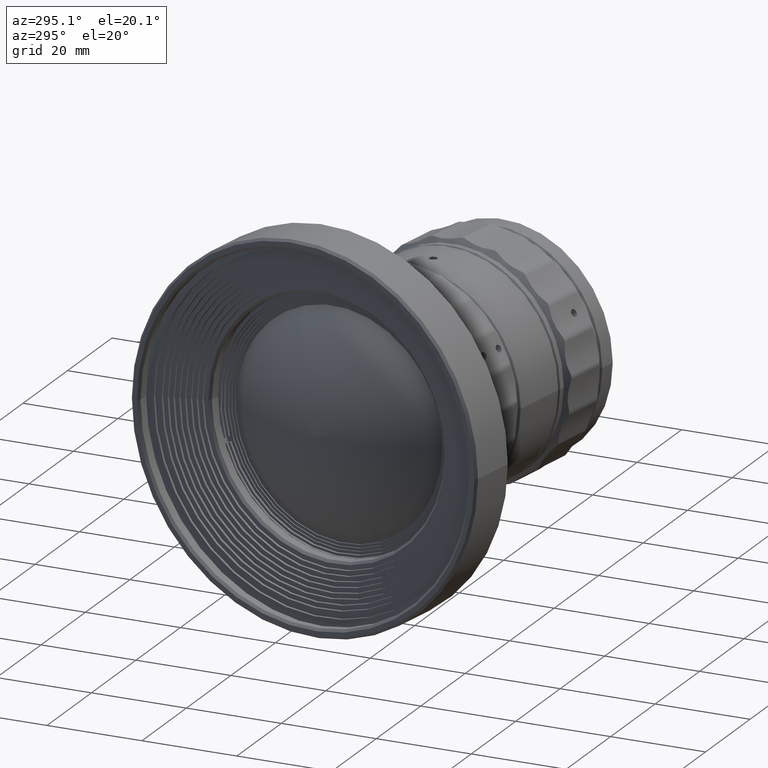
[diagram: clean part render]
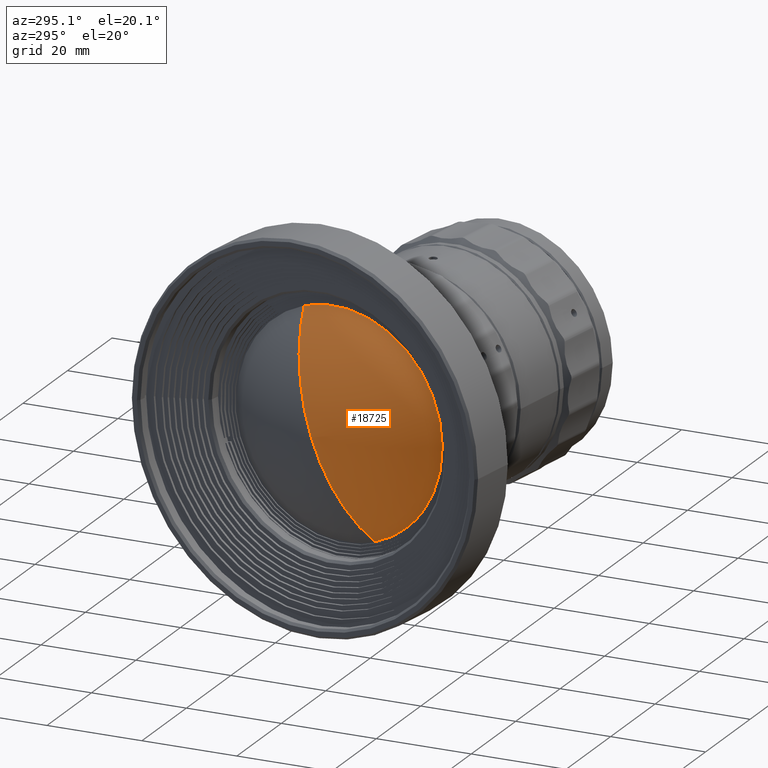
[diagram: same view with one face highlighted and labeled with its STEP entity id]
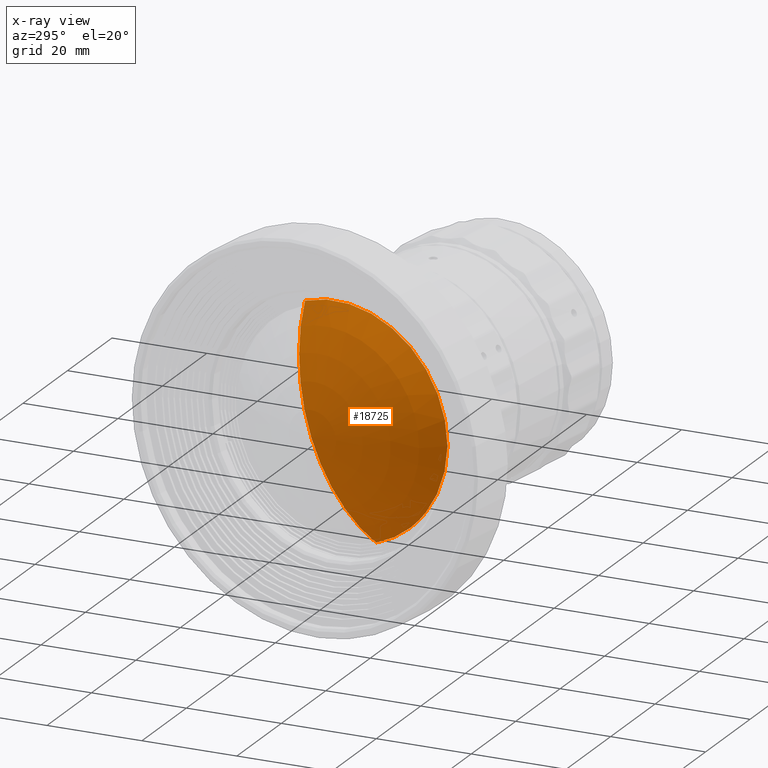
[diagram: x-ray of the same camera — body ghosted, the highlighted face saturated]
A machine part, auxiliary view. The second image highlights one B-rep face of the part: STEP entity #18725.
The next image is the same camera in x-ray: the body ghosted, the highlighted face saturated — about 0% of this face is hidden behind the body in this view.
In plain terms, the highlighted spherical surface has radius 34.4714 mm.
Its self-contained STEP definition (entity closure, byte-faithful):
#133 = VERTEX_POINT ( 'NONE', #56898 ) ;
#961 = AXIS2_PLACEMENT_3D ( 'NONE', #17207, #26756, #35374 ) ;
#1552 = CIRCLE ( 'NONE', #2553, 24.49999999998999911 ) ;
#2553 = AXIS2_PLACEMENT_3D ( 'NONE', #32448, #22342, #9798 ) ;
#2588 = CARTESIAN_POINT ( 'NONE',  ( 109.5732481666191944, -50.44569135500995571, -26.41428379224420908 ) ) ;
#3492 = CARTESIAN_POINT ( 'NONE',  ( 111.0002960915979173, -40.20014831186777826, -39.20679901999920958 ) ) ;
#4947 = CARTESIAN_POINT ( 'NONE',  ( 111.6840477388686992, -35.76302746001440624, -41.35008508961860230 ) ) ;
#6757 = CARTESIAN_POINT ( 'NONE',  ( 109.4729629315052222, -51.70474118127575736, -20.98620712222000151 ) ) ;
#7964 = CARTESIAN_POINT ( 'NONE',  ( 109.6819638979889646, -49.50687478875313730, -28.72062552290532977 ) ) ;
#8832 = CARTESIAN_POINT ( 'NONE',  ( 111.0812779524935934, -39.66680557021161491, -39.52707742490230913 ) ) ;
#9798 = DIRECTION ( 'NONE',  ( 0.05556133997111240008, 0.3401572221517859540, 0.9387257329585649845 ) ) ;
#11238 = CARTESIAN_POINT ( 'NONE',  ( 110.7683020686550321, -41.74217211875797062, -38.16957253435430886 ) ) ;
#11833 = CARTESIAN_POINT ( 'NONE',  ( 110.1754361324724414, -45.81240696151583336, -34.42305760428855876 ) ) ;
#12133 = CARTESIAN_POINT ( 'NONE',  ( 109.7847722472989602, -48.68118255105935077, -30.37970847852073675 ) ) ;
#12427 = CARTESIAN_POINT ( 'NONE',  ( 110.5507509243368958, -43.20632414695911905, -37.04340722809444486 ) ) ;
#12889 = EDGE_LOOP ( 'NONE', ( #18410, #23919, #31124 ) ) ;
#12935 = EDGE_CURVE ( 'NONE', #133, #15166, #1552, .T. ) ;
#15166 = VERTEX_POINT ( 'NONE', #26829 ) ;
#16899 = CARTESIAN_POINT ( 'NONE',  ( 109.4903579445857247, -51.30782206421546476, -23.42676179408603687 ) ) ;
#17207 = CARTESIAN_POINT ( 'NONE',  ( 137.3828734434829926, -31.55775053984945089, -18.76329369249004841 ) ) ;
#17793 = DIRECTION ( 'NONE',  ( -0.9869211278471834436, 0.1612038690876969327, 0.000000000000000000 ) ) ;
#18410 = ORIENTED_EDGE ( 'NONE', *, *, #45371, .F. ) ;
#18725 = ADVANCED_FACE ( 'NONE', ( #39847 ), #57988, .T. ) ;
#19584 = CIRCLE ( 'NONE', #52858, 34.47139600000001280 ) ;
#21076 = CARTESIAN_POINT ( 'NONE',  ( 110.2337086846071799, -45.40111714920871577, -34.88611730749440909 ) ) ;
#22342 = DIRECTION ( 'NONE',  ( 0.9869211278471835547, -0.1612038690876969049, 1.006182966091759454E-16 ) ) ;
#23159 = CARTESIAN_POINT ( 'NONE',  ( 111.6840477388686992, -35.76302746001440624, -41.35008508961860230 ) ) ;
#23919 = ORIENTED_EDGE ( 'NONE', *, *, #12935, .F. ) ;
#26756 = DIRECTION ( 'NONE',  ( 0.9869211278471833326, -0.1612038690876970159, 4.403311781976295933E-17 ) ) ;
#26829 = CARTESIAN_POINT ( 'NONE',  ( 109.5014919808595124, -51.82682655836247676, -18.49821393081294829 ) ) ;
#30623 = CARTESIAN_POINT ( 'NONE',  ( 110.8436774206207929, -41.23871231949771499, -38.52736186012613473 ) ) ;
#30949 = B_SPLINE_CURVE_WITH_KNOTS ( 'NONE', 3,
 ( #47851, #43404, #6757, #16899, #52916, #2588, #39830, #56770, #7964, #12133, #38931, #34463, #52619, #11833, #21076, #53206, #12427, #11238, #30623, #3492, #8832, #36543, #44871, #4947 ),
 .UNSPECIFIED., .F., .F.,
 ( 4, 2, 2, 2, 2, 2, 2, 2, 2, 2, 2, 4 ),
 ( 0.0001990420508601682323, 0.003907932764667508378, 0.007616823478474849148, 0.009471268835378514328, 0.01132571419228217864, 0.01503460490608950727, 0.01688905026299317852, 0.01874349561989684804, 0.02245238633370418707, 0.02430683169060785312, 0.02616127704751151570, 0.02987016776131883045 ),
 .UNSPECIFIED. ) ;
#31124 = ORIENTED_EDGE ( 'NONE', *, *, #42802, .F. ) ;
#31506 = CARTESIAN_POINT ( 'NONE',  ( 137.3828734434829926, -31.55775053984945089, -18.76329369249004841 ) ) ;
#32448 = CARTESIAN_POINT ( 'NONE',  ( 113.4507555961811960, -27.64867423821700143, -18.76329369249004841 ) ) ;
#34463 = CARTESIAN_POINT ( 'NONE',  ( 110.0125547680036675, -46.98169263361462811, -32.96299715061881841 ) ) ;
#35374 = DIRECTION ( 'NONE',  ( -0.05556133997111247641, -0.3401572221517858430, -0.9387257329585650956 ) ) ;
#36543 = CARTESIAN_POINT ( 'NONE',  ( 111.3294177238160216, -38.04305475949744419, -40.41943606940878198 ) ) ;
#38931 = CARTESIAN_POINT ( 'NONE',  ( 109.8673394254128368, -48.05036381124948974, -31.44056935588252699 ) ) ;
#39830 = CARTESIAN_POINT ( 'NONE',  ( 109.5968966804395706, -50.23095000065569593, -27.00439114002636742 ) ) ;
#39847 = FACE_OUTER_BOUND ( 'NONE', #12889, .T. ) ;
#42802 = EDGE_CURVE ( 'NONE', #50537, #133, #19584, .T. ) ;
#43404 = CARTESIAN_POINT ( 'NONE',  ( 109.4793743644991082, -51.81277751209911742, -19.75032201291708489 ) ) ;
#44871 = CARTESIAN_POINT ( 'NONE',  ( 111.5027673250884988, -36.92223407108269129, -40.92800306844942781 ) ) ;
#45371 = EDGE_CURVE ( 'NONE', #15166, #50537, #30949, .T. ) ;
#47851 = CARTESIAN_POINT ( 'NONE',  ( 109.5014919808595124, -51.82682655836247676, -18.49821393081294829 ) ) ;
#50537 = VERTEX_POINT ( 'NONE', #23159 ) ;
#52619 = CARTESIAN_POINT ( 'NONE',  ( 110.0647599907318153, -46.60337945246885027, -33.46083799458206443 ) ) ;
#52858 = AXIS2_PLACEMENT_3D ( 'NONE', #31506, #54661, #17793 ) ;
#52916 = CARTESIAN_POINT ( 'NONE',  ( 109.5141657831691617, -51.01893105209210688, -24.63142993664150282 ) ) ;
#53206 = CARTESIAN_POINT ( 'NONE',  ( 110.4171021412280567, -44.12104700782723654, -36.22252859527808511 ) ) ;
#54661 = DIRECTION ( 'NONE',  ( 0.1513262201651049688, 0.9264482591106408815, -0.3446650523064459515 ) ) ;
#56770 = CARTESIAN_POINT ( 'NONE',  ( 109.6512165979943632, -49.76192970177953612, -28.15625060517981382 ) ) ;
#56898 = CARTESIAN_POINT ( 'NONE',  ( 114.8120084254729960, -19.31482229550164931, 4.235486764985449959 ) ) ;
#57988 = SPHERICAL_SURFACE ( 'NONE', #961, 34.47139599999999859 ) ;